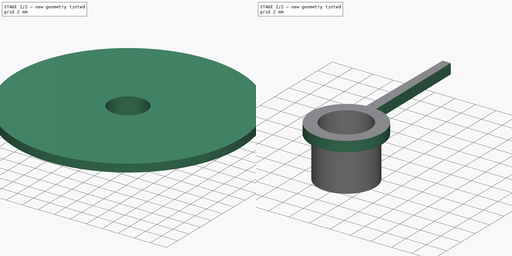
[diagram: build sequence overview — one tinted view per stage of 2, left to right]
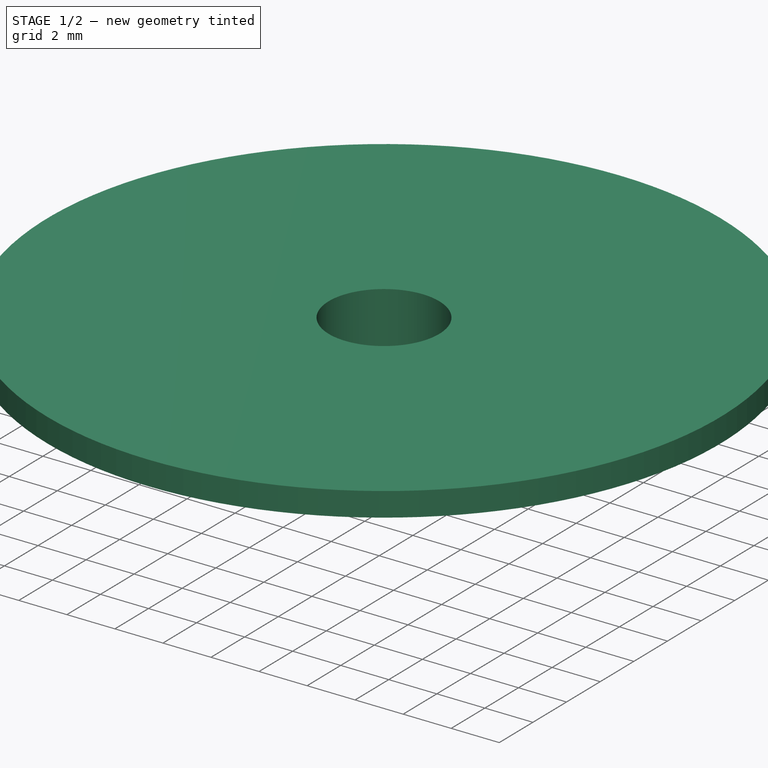
[diagram: stage 1 of 2 — iso view after this stage's code; geometry added in this stage tinted green]
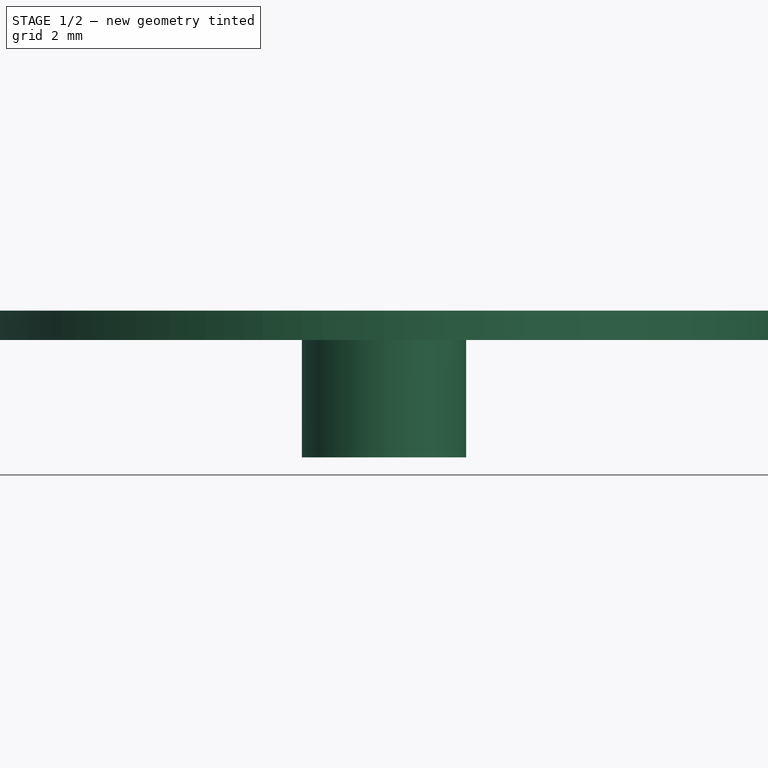
[diagram: stage 1 of 2 — front view after this stage's code; geometry added in this stage tinted green]
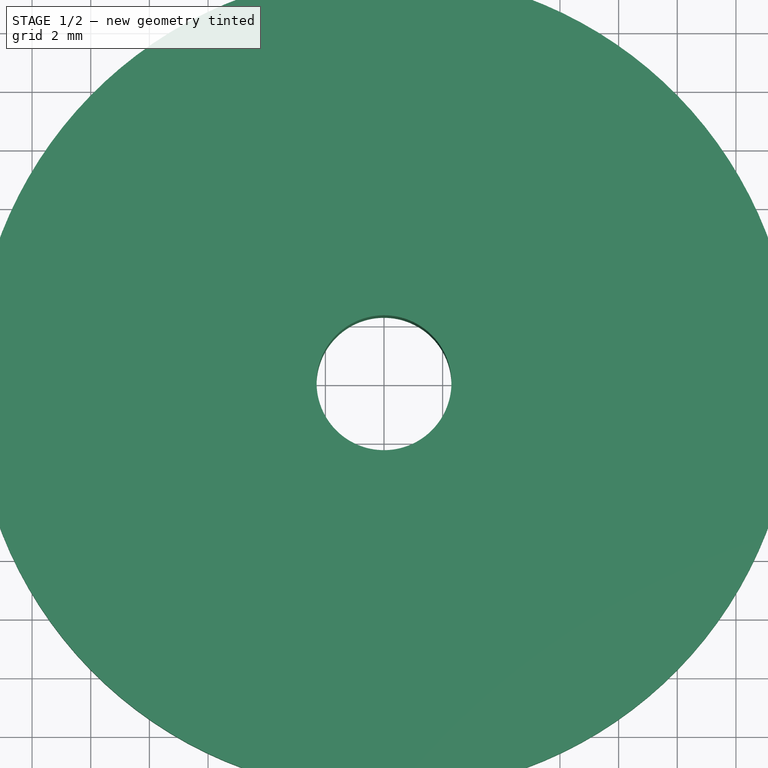
[diagram: stage 1 of 2 — top view after this stage's code; geometry added in this stage tinted green]
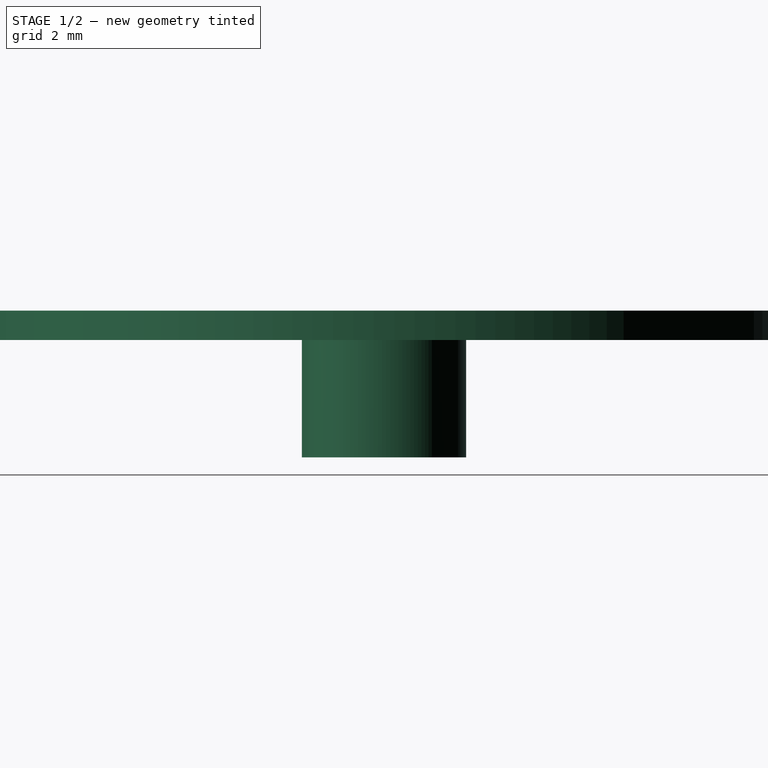
[diagram: stage 1 of 2 — right view after this stage's code; geometry added in this stage tinted green]
FCSTD DOCUMENT  (FreeCAD 0.19.4R1_voidlinux)
Label: hand_alarm
License: All rights reserved
LicenseURL: http://en.wikipedia.org/wiki/All_rights_reserved
objects: Sketcher::SketchObject×2, PartDesign::Revolution×1, PartDesign::Pocket×1, PartDesign::Body×1, PartDesign::CoordinateSystem×1, App::Part×1
note: 8 computed .brp shape members not serialized (recipe doc carries the construction recipe); baked Part::Feature solids carry a one-line shape summary decoded from their .brp
EXTERNAL_REF file=master_animator.FCStd obj=Variables

FEATURE [Sketcher::SketchObject] Sketch
  FullyConstrained = true
  MapMode = 5
  Placement = pos=(0,0,0) rot=(0.57735,0.57735,0.57735;2.0944rad)
  Support = -> [YZ_Plane001]
  sketch-geometry (6):
    g0: LineSegment StartX=-14 StartY=0 StartZ=0 EndX=-14 EndY=-1 EndZ=0
    g1: LineSegment StartX=-14 StartY=-1 StartZ=0 EndX=-2.8 EndY=-1 EndZ=0
    g2: LineSegment StartX=-2.8 StartY=-1 StartZ=0 EndX=-2.8 EndY=-5 EndZ=0
    g3: LineSegment StartX=-2.8 StartY=-5 StartZ=0 EndX=-2.3 EndY=-5 EndZ=0
    g4: LineSegment StartX=-2.3 StartY=-5 StartZ=0 EndX=-2.3 EndY=0 EndZ=0
    g5: LineSegment StartX=-14 StartY=0 StartZ=0 EndX=-2.3 EndY=0 EndZ=0
  constraints (18):
    c: PointOnObject(g0,g-1)
    c: Vertical(g0)
    c: Coincident(g1,g0)
    c: Horizontal(g1)
    c: Coincident(g2,g1)
    c: Vertical(g2)
    c: Coincident(g3,g2)
    c: Horizontal(g3)
    c: Coincident(g4,g3)
    c: Vertical(g4)
    c: PointOnObject(g4,g-1)
    c: Coincident(g5,g0)
    c: Coincident(g5,g4)
    c: Distance(g3) = 0.5
    c: DistanceX(g-2,g2) = -2.8
    c: DistanceX(g-2,g0) = -14
    c: Distance(g4) = 5
    c: Distance(g0) = 1
FEATURE [PartDesign::Revolution] Revolution
  Angle = 360
  Axis = (-2e-16,3e-16,1)
  Base = (0,0,0)
  Placement = pos=(0,0,0) rot=(0.57735,0.57735,0.57735;2.0944rad)
  Profile = -> Sketch
  ReferenceAxis = -> Sketch [V_Axis]
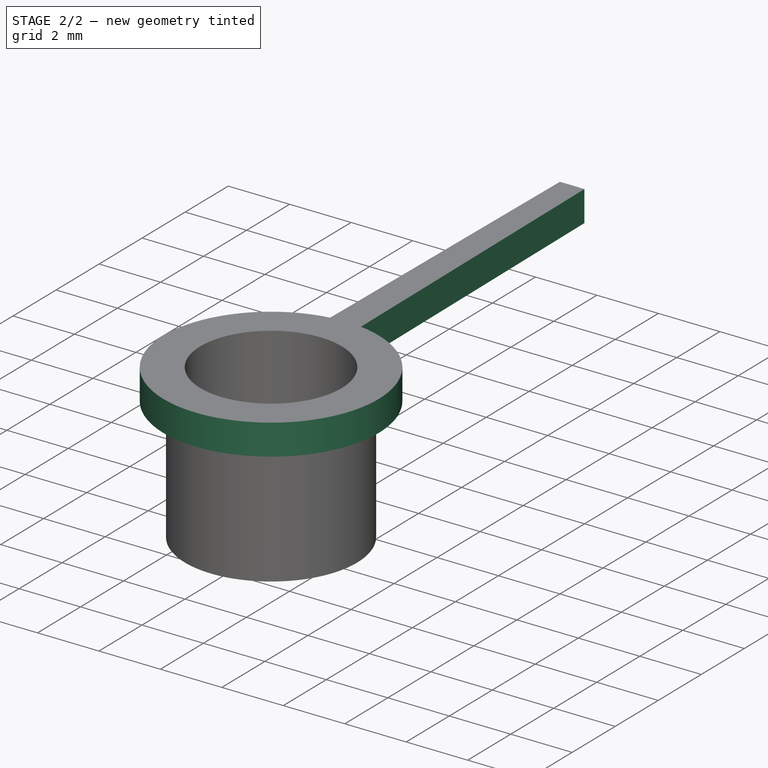
[diagram: stage 2 of 2 — iso view after this stage's code; geometry added in this stage tinted green]
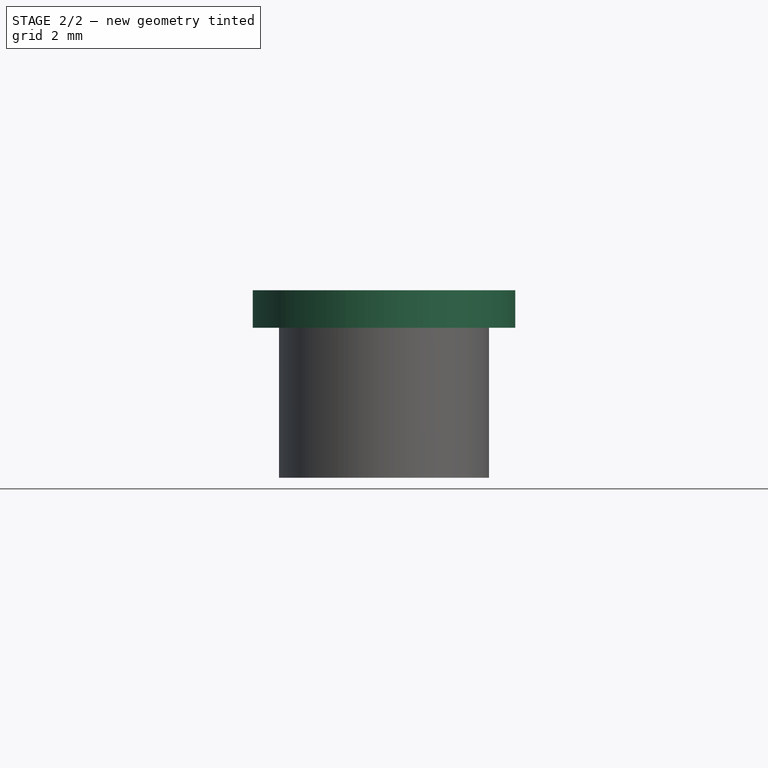
[diagram: stage 2 of 2 — front view after this stage's code; geometry added in this stage tinted green]
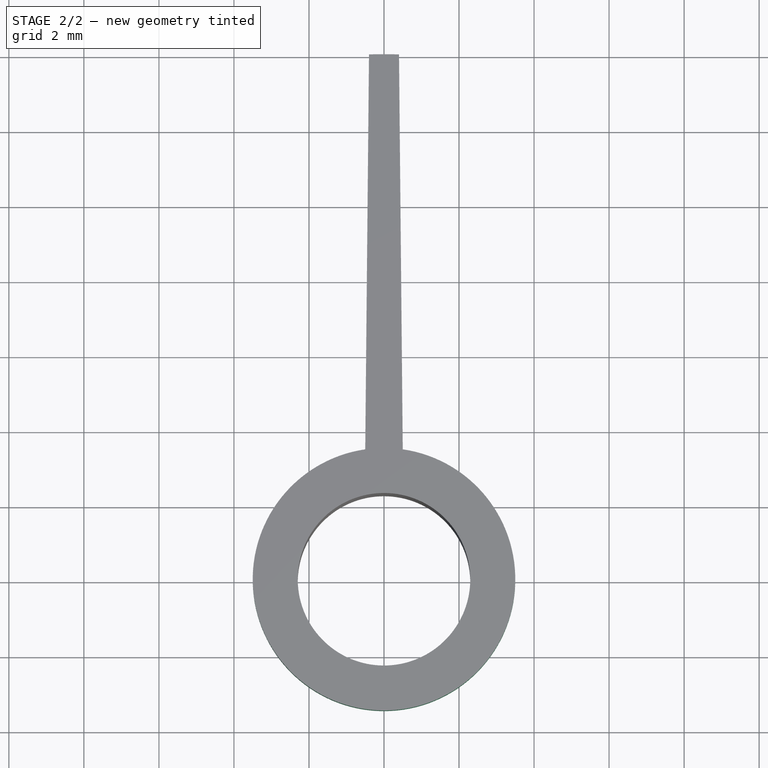
[diagram: stage 2 of 2 — top view after this stage's code; geometry added in this stage tinted green]
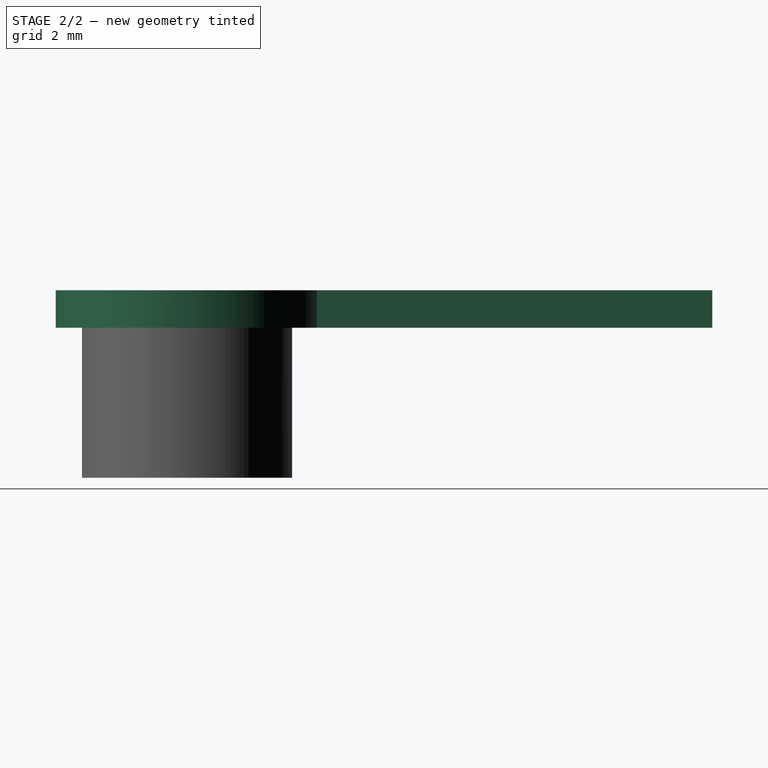
[diagram: stage 2 of 2 — right view after this stage's code; geometry added in this stage tinted green]
FEATURE [Sketcher::SketchObject] Sketch001
  ExternalGeometry = -> [Revolution]
  FullyConstrained = true
  MapMode = 5
  Placement = pos=(0,0,2.3e-15) rot=(0,0,-1;1.5708rad)
  Support = -> [Revolution]
  sketch-geometry (6):
    g0: LineSegment StartX=-13.9943 StartY=0.4 StartZ=0 EndX=-3.4641 EndY=0.5 EndZ=0
    g1: LineSegment StartX=-3.4641 StartY=-0.5 StartZ=0 EndX=-13.9943 EndY=-0.4 EndZ=0
    g2: ArcOfCircle CenterX=-2e-16 CenterY=9e-15 CenterZ=0 NormalX=0 NormalY=0 NormalZ=1 AngleXU=0 Radius=14 StartAngle=3.17017 EndAngle=9.3962
    g3: ArcOfCircle CenterX=-2e-16 CenterY=9e-15 CenterZ=0 NormalX=0 NormalY=0 NormalZ=1 AngleXU=0 Radius=3.5 StartAngle=3.28494 EndAngle=9.28143
    g4: LineSegment StartX=-3.4641 StartY=0.5 StartZ=0 EndX=-3.4641 EndY=0 EndZ=0
    g5: LineSegment StartX=-3.4641 StartY=0 StartZ=0 EndX=-3.4641 EndY=-0.5 EndZ=0
  constraints (17):
    c: PointOnObject(g0,g-3)
    c: Symmetric(g0,g1,g-1)
    c: DistanceY(g1,g0) = 1
    c: Coincident(g2,g0)
    c: Coincident(g2,g1)
    c: Coincident(g3,g2)
    c: Coincident(g3,g0)
    c: Radius(g3) = 3.5
    c: Equal(g2,g-3)
    c: DistanceY(g1,g0) = 0.8
    c: Coincident(g3,g1)
    c: Coincident(g4,g0)
    c: PointOnObject(g4,g-1)
    c: Vertical(g4)
    c: Coincident(g5,g4)
    c: Coincident(g5,g1)
    c: Vertical(g5)
FEATURE [PartDesign::Pocket] Pocket
  BaseFeature = -> Revolution
  Length = 5
  Length2 = 100
  Placement = pos=(0,0,0) rot=(0.57735,0.57735,0.57735;2.0944rad)
  Profile = -> Sketch001
  Type = 1
FEATURE [PartDesign::Body] Body
  Group = -> [Sketch,Revolution,Sketch001,Pocket]
  Origin = -> Origin001
  Tip = -> Pocket
FEATURE [PartDesign::CoordinateSystem] LCS_tophole
  AttacherType = Attacher::AttachEngine3D
  AttachmentOffset = pos=(0,0,0) rot=(0,0,-1;1.0472rad)
  MapMode = 11
  Placement = pos=(0,0,4e-16) rot=(0,0,-1;1.0472rad)
  Support = -> [Pocket]
  expr: .AttachmentOffset.Base.z = -master_animator#Variables.explode * 4
FEATURE [App::Part] Part  label="hand_alarm"
  Group = -> [LCS_tophole,Body]
  Origin = -> Origin
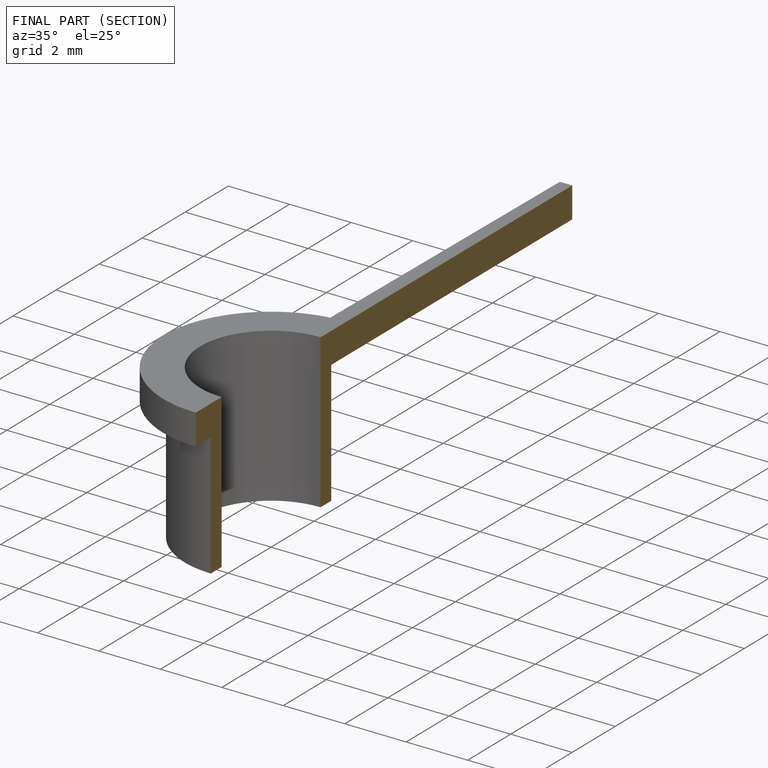
[diagram: finished part — half-section view (interior)]
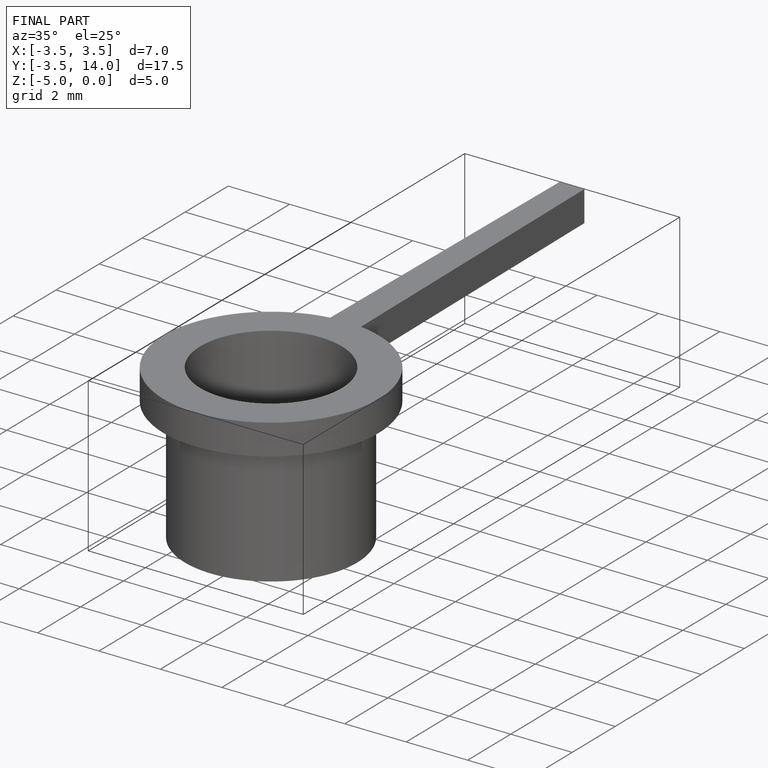
[diagram: finished part — iso view with bounding-box wireframe]
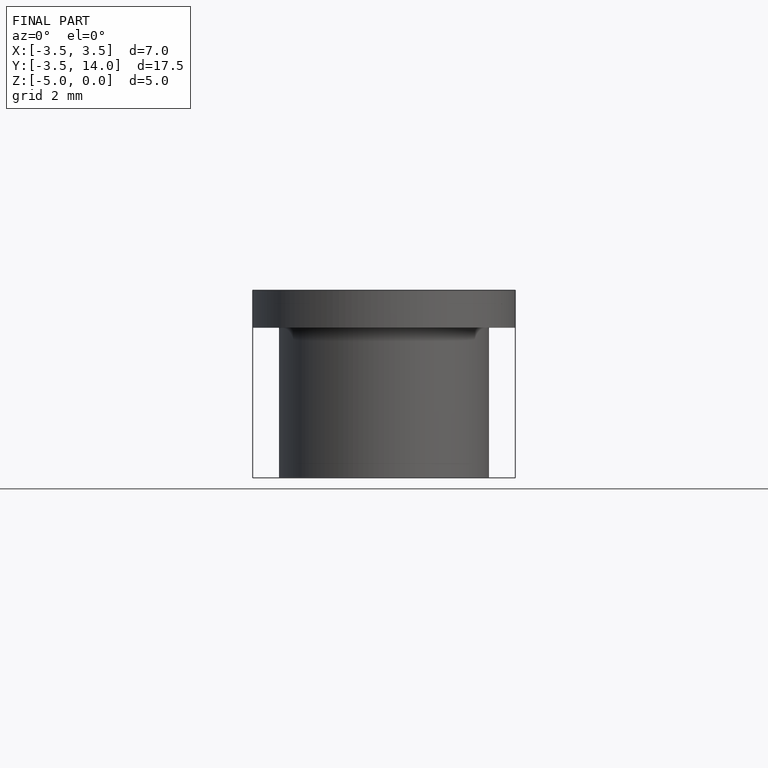
[diagram: finished part — front view with bounding-box wireframe]
